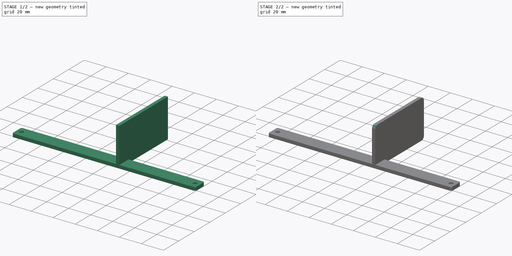
[diagram: build sequence overview — one tinted view per stage of 2, left to right]
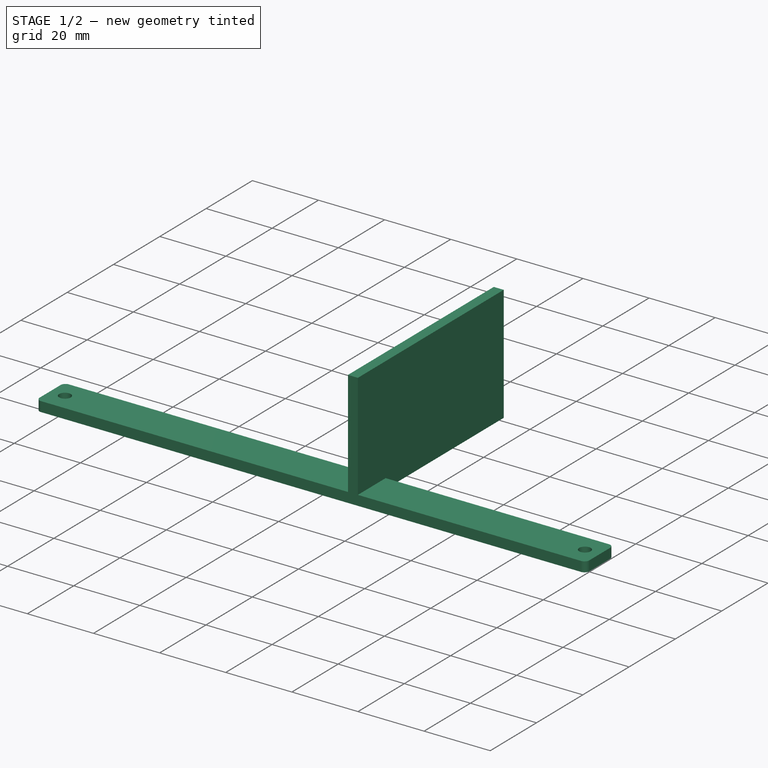
[diagram: stage 1 of 2 — iso view after this stage's code; geometry added in this stage tinted green]
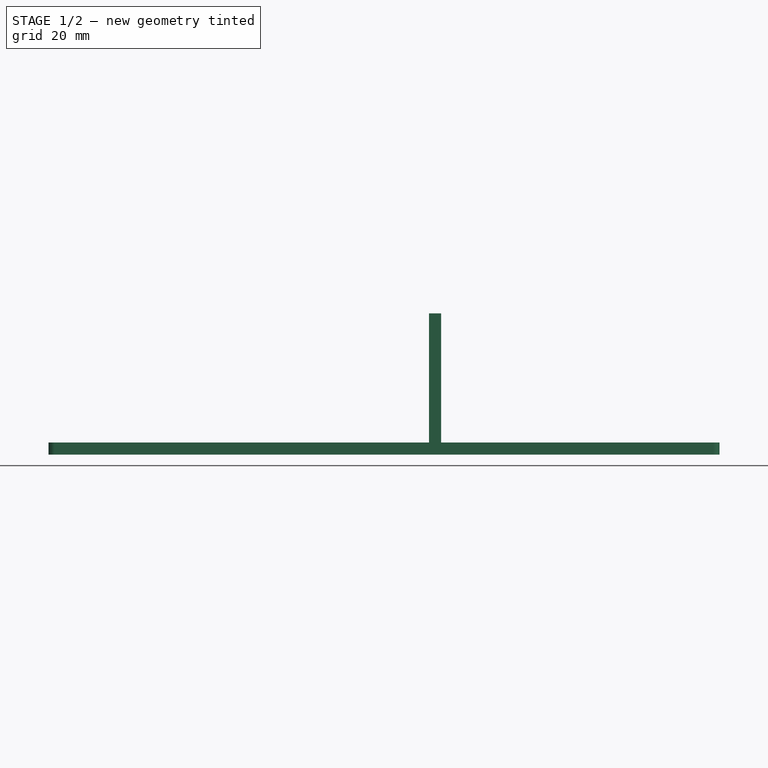
[diagram: stage 1 of 2 — front view after this stage's code; geometry added in this stage tinted green]
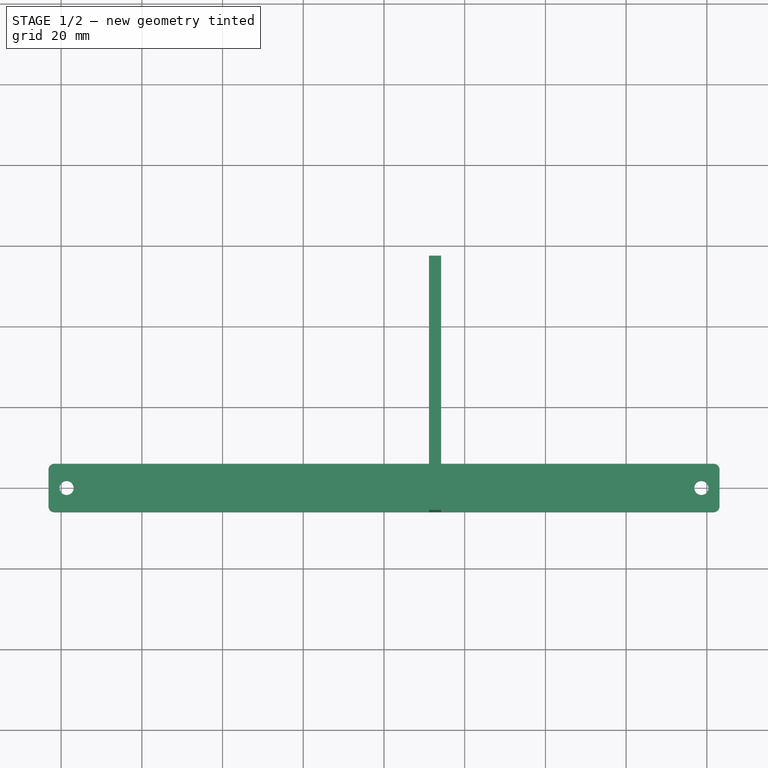
[diagram: stage 1 of 2 — top view after this stage's code; geometry added in this stage tinted green]
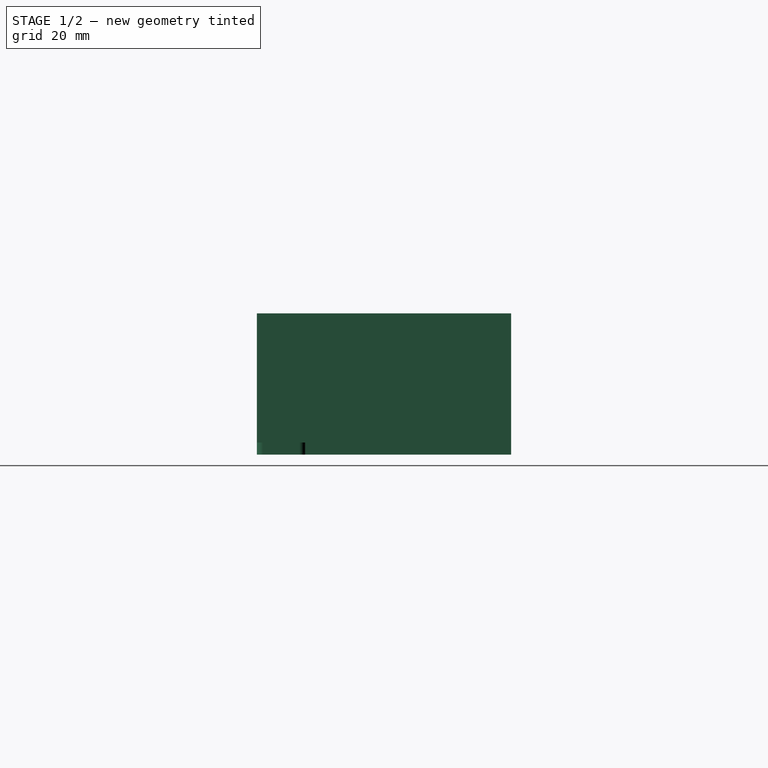
[diagram: stage 1 of 2 — right view after this stage's code; geometry added in this stage tinted green]
FCSTD DOCUMENT  (FreeCAD 0.21R33771 (Git))
Label: J1S_Camera_Holder
License: All rights reserved
LicenseURL: http://en.wikipedia.org/wiki/All_rights_reserved
objects: Sketcher::SketchObject×2, PartDesign::Pad×2, Spreadsheet::Sheet×1, PartDesign::Fillet×1, PartDesign::Body×1, App::Part×1
note: 9 computed .brp shape members not serialized (recipe doc carries the construction recipe); baked Part::Feature solids carry a one-line shape summary decoded from their .brp

FEATURE [Spreadsheet::Sheet] Spreadsheet  label="p"
  cells = A1='screw_width; B1(screw_width)=157.3; A3='camera_height; B3(camera_height)=64.5; C3='from top screw center; A5='mount_length; B5(mount_length)=12; A6='mount_width; B6(mount_width)==B1 + B7 * 3; C6='Calculated; A7='mount_thickness; B7(mount_thickness)=3; A9='m3_diameter; B9(m3_diameter)=3.5; A11='shelf_width; B11(shelf_width)=57; A12='shelf_depth; B12(shelf_depth)=35
FEATURE [Sketcher::SketchObject] Sketch
  FullyConstrained = true
  MapMode = 5
  Support = -> [XY_Plane001]
  expr: Constraints[12] = <<p>>.mount_thickness / 2
  expr: Constraints[13] = <<p>>.mount_thickness / 2
  expr: Constraints[14] = <<p>>.mount_thickness / 2
  expr: Constraints[15] = <<p>>.mount_thickness / 2
  expr: Constraints[16] = <<p>>.mount_length
  expr: Constraints[17] = <<p>>.mount_width
  expr: Constraints[22] = <<p>>.m3_diameter
  expr: Constraints[23] = <<p>>.screw_width / 2
  expr: Constraints[24] = <<p>>.screw_width / 2
  sketch-geometry (10):
    g0: LineSegment StartX=-81.65 StartY=6 StartZ=0 EndX=81.65 EndY=6 EndZ=0
    g1: LineSegment StartX=83.15 StartY=4.5 StartZ=0 EndX=83.15 EndY=-4.5 EndZ=0
    g2: LineSegment StartX=81.65 StartY=-6 StartZ=0 EndX=-81.65 EndY=-6 EndZ=0
    g3: LineSegment StartX=-83.15 StartY=-4.5 StartZ=0 EndX=-83.15 EndY=4.5 EndZ=0
    g4: ArcOfCircle CenterX=-81.65 CenterY=4.5 CenterZ=0 NormalX=0 NormalY=0 NormalZ=1 AngleXU=0 Radius=1.5 StartAngle=1.5708 EndAngle=3.14159
    g5: ArcOfCircle CenterX=-81.65 CenterY=-4.5 CenterZ=0 NormalX=0 NormalY=0 NormalZ=1 AngleXU=0 Radius=1.5 StartAngle=3.14159 EndAngle=4.71239
    g6: ArcOfCircle CenterX=81.65 CenterY=4.5 CenterZ=0 NormalX=0 NormalY=0 NormalZ=1 AngleXU=0 Radius=1.5 StartAngle=0 EndAngle=1.5708
    g7: ArcOfCircle CenterX=81.65 CenterY=-4.5 CenterZ=0 NormalX=0 NormalY=0 NormalZ=1 AngleXU=0 Radius=1.5 StartAngle=4.71239 EndAngle=6.28319
    g8: Circle CenterX=-78.65 CenterY=0 CenterZ=0 NormalX=0 NormalY=0 NormalZ=1 AngleXU=0 Radius=1.75
    g9: Circle CenterX=78.65 CenterY=0 CenterZ=0 NormalX=0 NormalY=0 NormalZ=1 AngleXU=0 Radius=1.75
  constraints (25):
    c: Horizontal(g0)
    c: Horizontal(g2)
    c: Vertical(g1)
    c: Vertical(g3)
    c: Tangent(g3,g4) = 1.5708
    c: Tangent(g0,g4) = 1.5708
    c: Tangent(g3,g5) = 1.5708
    c: Tangent(g2,g5) = 1.5708
    c: Tangent(g0,g6) = 1.5708
    c: Tangent(g1,g6) = 1.5708
    c: Tangent(g1,g7) = 1.5708
    c: Tangent(g2,g7) = 1.5708
    c: Radius(g6) = 1.5
    c: Radius(g7) = 1.5
    c: Radius(g5) = 1.5
    c: Radius(g4) = 1.5
    c: DistanceY(g2,g0) = 12
    c: DistanceX(g3,g1) = 166.3
    c: Symmetric(g5,g6,g-1)
    c: PointOnObject(g8,g-1)
    c: PointOnObject(g9,g-1)
    c: Equal(g9,g8)
    c: Diameter(g9) = 3.5
    c: DistanceX(g8,g-1) = 78.65
    c: DistanceX(g-1,g9) = 78.65
FEATURE [PartDesign::Pad] Pad
  Direction = (0,0,1)
  Length = 3
  Length2 = 10
  Profile = -> Sketch
  ReferenceAxis = -> Sketch [N_Axis]
  Type = 0
  expr: Length = <<p>>.mount_thickness
FEATURE [Sketcher::SketchObject] Sketch001
  FullyConstrained = true
  MapMode = 5
  Placement = pos=(0,0,0) rot=(1,0,0;3.14159rad)
  Support = -> [Pad]
  expr: Constraints[10] = <<p>>.mount_length / 2
  expr: Constraints[11] = <<p>>.screw_width / 2 - <<p>>.camera_height
  expr: Constraints[8] = <<p>>.mount_thickness
  expr: Constraints[9] = <<p>>.shelf_width + <<p>>.mount_length / 2
  sketch-geometry (4):
    g0: LineSegment StartX=11.15 StartY=6 StartZ=0 EndX=14.15 EndY=6 EndZ=0
    g1: LineSegment StartX=14.15 StartY=6 StartZ=0 EndX=14.15 EndY=-57 EndZ=0
    g2: LineSegment StartX=14.15 StartY=-57 StartZ=0 EndX=11.15 EndY=-57 EndZ=0
    g3: LineSegment StartX=11.15 StartY=-57 StartZ=0 EndX=11.15 EndY=6 EndZ=0
  constraints (12):
    c: Coincident(g0,g1)
    c: Coincident(g1,g2)
    c: Coincident(g2,g3)
    c: Coincident(g3,g0)
    c: Horizontal(g0)
    c: Horizontal(g2)
    c: Vertical(g1)
    c: Vertical(g3)
    c: DistanceX(g2,g2) = 3
    c: DistanceY(g1,g1) = 63
    c: DistanceY(g-1,g0) = 6
    c: DistanceX(g-1,g0) = 14.15
FEATURE [PartDesign::Pad] Pad001
  BaseFeature = -> Pad
  Direction = (0,0,-1)
  Length = 35
  Length2 = 10
  Profile = -> Sketch001
  ReferenceAxis = -> Sketch001 [N_Axis]
  Reversed = true
  Type = 0
  expr: Length = <<p>>.shelf_depth
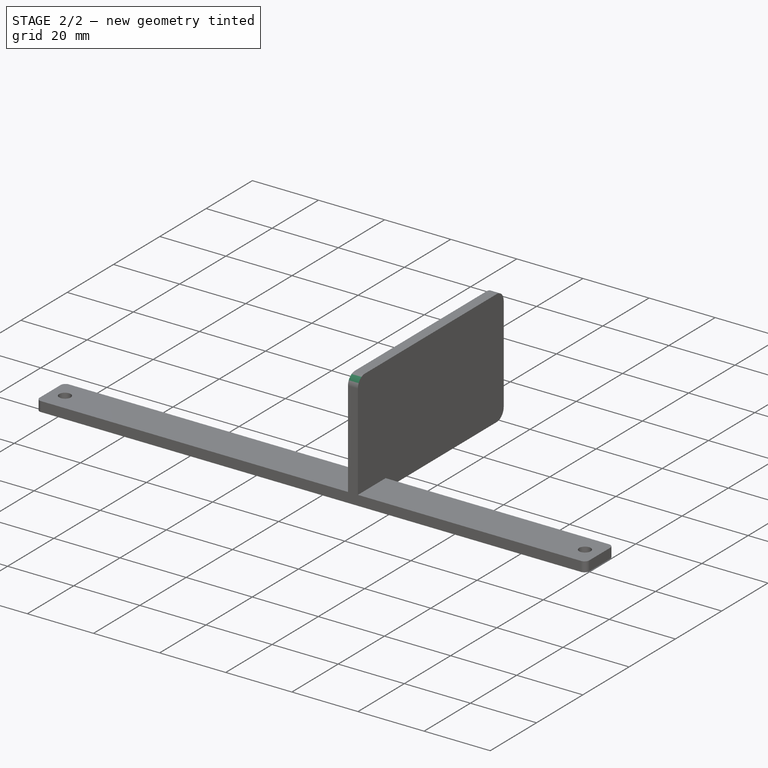
[diagram: stage 2 of 2 — iso view after this stage's code; geometry added in this stage tinted green]
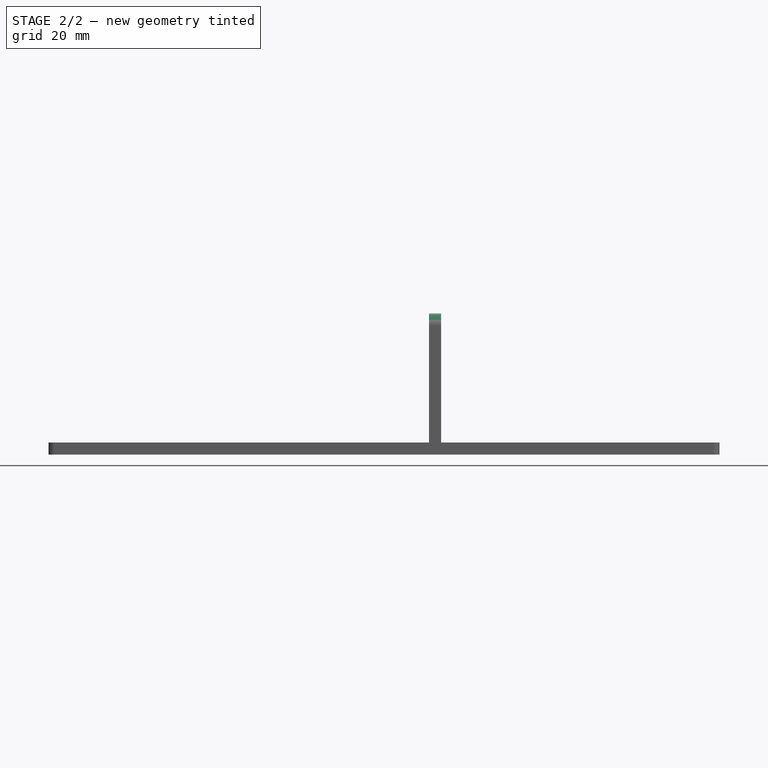
[diagram: stage 2 of 2 — front view after this stage's code; geometry added in this stage tinted green]
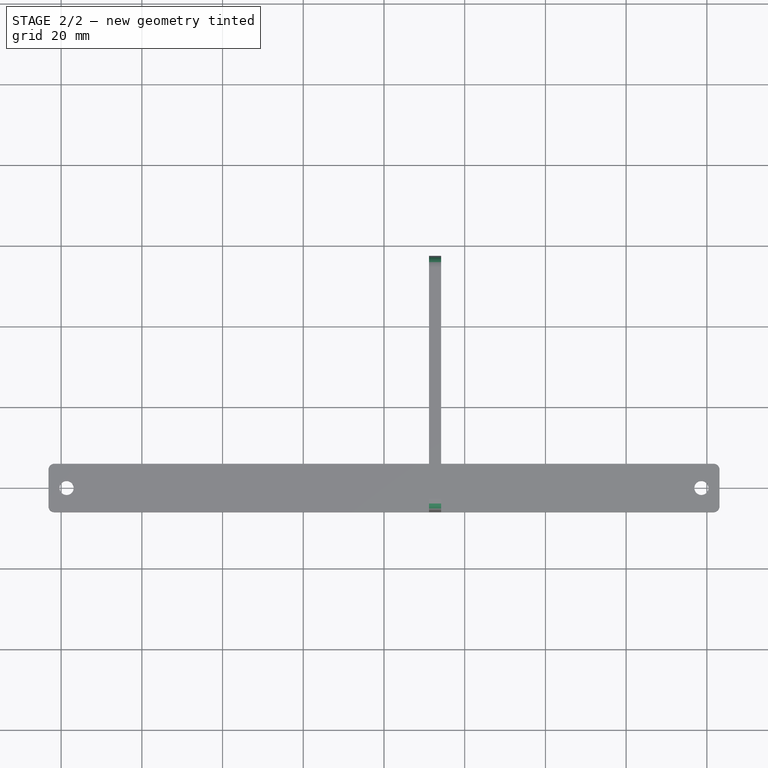
[diagram: stage 2 of 2 — top view after this stage's code; geometry added in this stage tinted green]
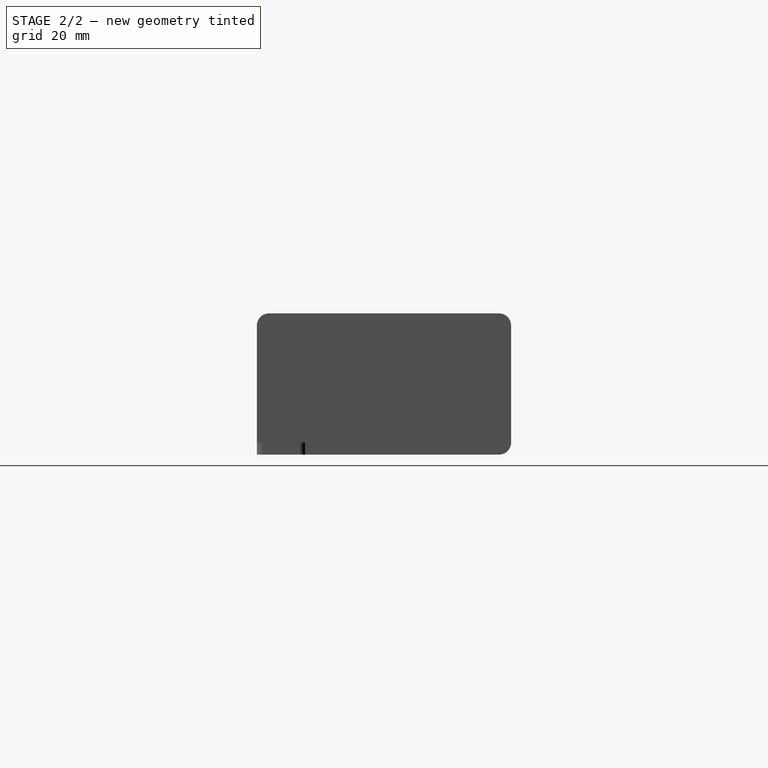
[diagram: stage 2 of 2 — right view after this stage's code; geometry added in this stage tinted green]
FEATURE [PartDesign::Fillet] Fillet
  Base = -> Pad001 [Edge40,Edge42,Edge31]
  BaseFeature = -> Pad001
  Radius = 3
  SupportTransform = false
  UseAllEdges = false
  expr: Radius = <<p>>.mount_thickness
FEATURE [PartDesign::Body] Body  label="MountBody"
  Group = -> [Sketch,Pad,Sketch001,Pad001,Fillet]
  Origin = -> Origin001
  Tip = -> Fillet
FEATURE [App::Part] Part  label="MountPart"
  Group = -> [Body]
  Origin = -> Origin
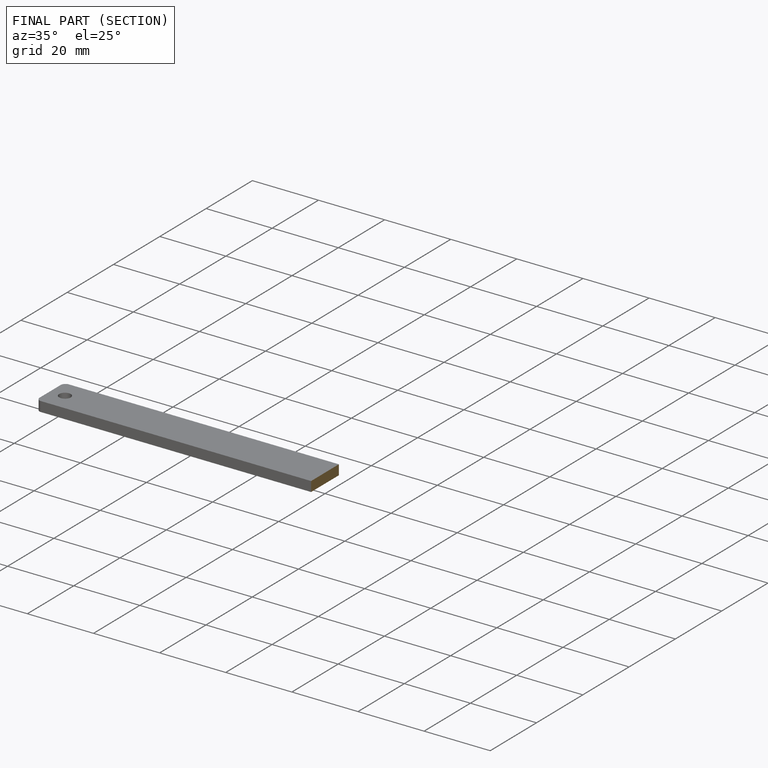
[diagram: finished part — half-section view (interior)]
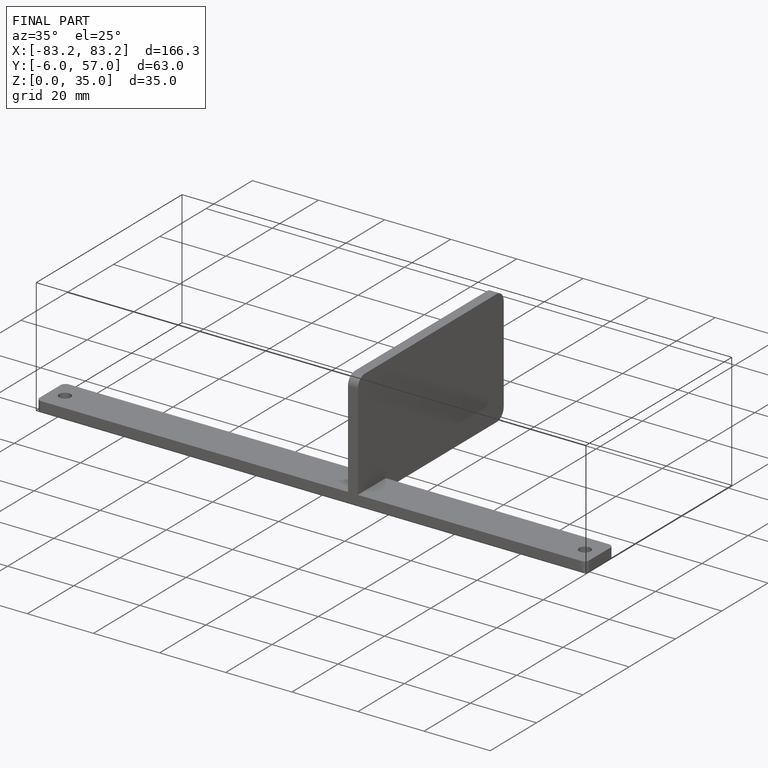
[diagram: finished part — iso view with bounding-box wireframe]
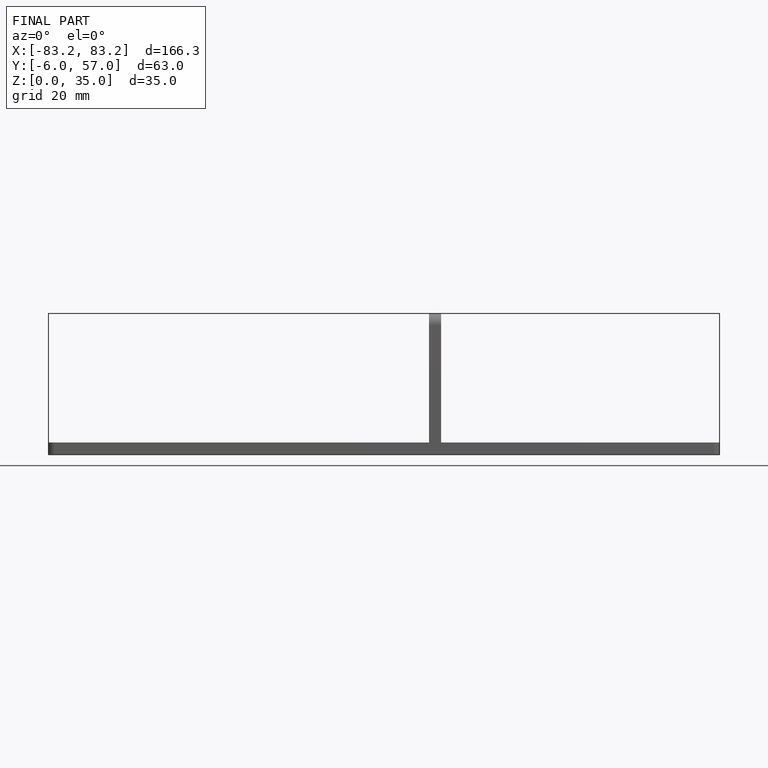
[diagram: finished part — front view with bounding-box wireframe]
